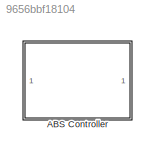
MODEL slx_9656bbf18104
KIND model
CONFIG AbsTol = auto
CONFIG FixedStep = 0.001
CONFIG MaxStep = auto
CONFIG MinStep = auto
CONFIG PostLoadFcn = , if any(exist('dsrtsu_mdlpostloadfcn', 'file') == [2, 3, 6]), try dsrtsu_mdlpostloadfcn('Execute', bdroot); catch fprintf('Error in PostLoadFcn (dsrtsu_mdlpostloadfcn) for model "%s":\n %s\n', bdroot, lasterr); end, end, \n
CONFIG RelTol = 1e-3
CONFIG SampleTimeConstraint = Unconstrained
CONFIG Solver = ode45
CONFIG SolverMode = Auto
CONFIG SolverName = ode45
CONFIG StartTime = 0.0
CONFIG StopTime = 30
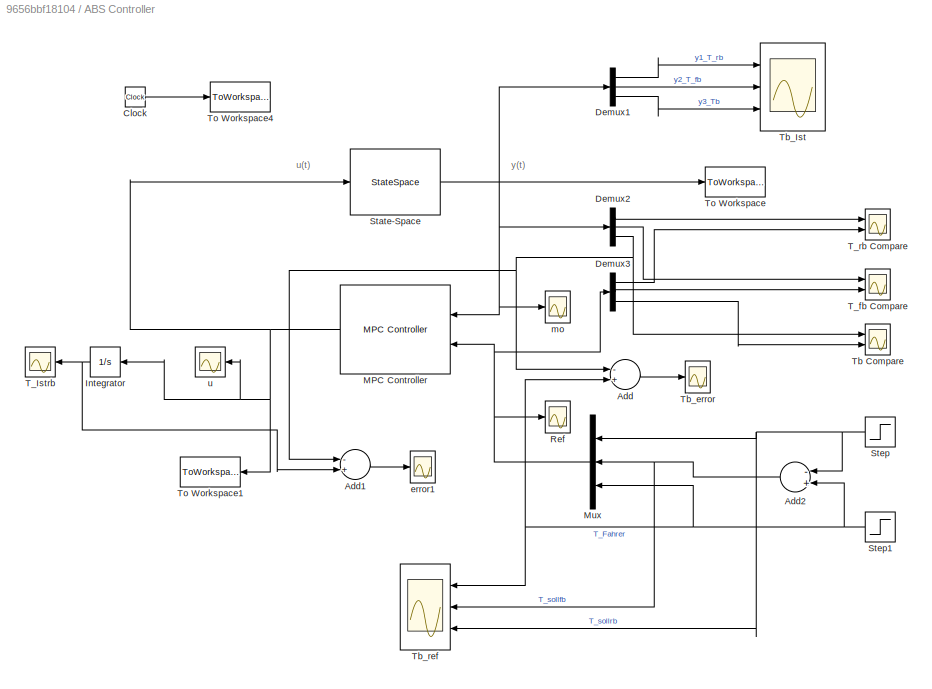
BLOCK [SubSystem] ABS Controller
  Ports = []
  RequestExecContextInheritance = off
  Variant = off
BLOCK [Sum] ABS Controller/Add
  InputSameDT = off
  Inputs = -+
  OutDataTypeStr = Inherit: Inherit via internal rule
  Ports = [2, 1]
  SaturateOnIntegerOverflow = off
BLOCK [Sum] ABS Controller/Add1
  InputSameDT = off
  Inputs = -+
  OutDataTypeStr = Inherit: Inherit via internal rule
  Ports = [2, 1]
  SaturateOnIntegerOverflow = off
BLOCK [Sum] ABS Controller/Add2
  InputSameDT = off
  Inputs = -+
  OutDataTypeStr = Inherit: Inherit via internal rule
  Ports = [2, 1]
  SaturateOnIntegerOverflow = off
BLOCK [Clock] ABS Controller/Clock
BLOCK [Demux] ABS Controller/Demux1
  DisplayOption = bar
  Outputs = 3
  Ports = [1, 3]
BLOCK [Demux] ABS Controller/Demux2
  DisplayOption = bar
  Outputs = 3
  Ports = [1, 3]
BLOCK [Demux] ABS Controller/Demux3
  DisplayOption = bar
  Outputs = 3
  Ports = [1, 3]
BLOCK [Integrator] ABS Controller/Integrator
  Ports = [1, 1]
BLOCK [Reference] ABS Controller/MPC Controller  REF=mpclib/MPC Controller  (lib defined in mdl_ae329e0e0455)
  Ports = [2, 1]
  SourceBlock = mpclib/MPC Controller
  SourceType = MPC
BLOCK [Mux] ABS Controller/Mux
  DisplayOption = bar
  Inputs = 3
  Ports = [3, 1]
BLOCK [Scope] ABS Controller/Ref
  Ports = [1]
  ScopeSpecificationString = Simulink.scopes.TimeScopeBlockCfg('CurrentConfiguration', extmgr.ConfigurationSet(extmgr.Configuration('Core','General UI',true),extmgr.Configuration('Core','Source UI',true),extmgr.Configuration('Sources','WiredSimulink',true,'DataLoggingSaveFormat','Structure','DataLoggingLimitDataPoints',true,'DataLoggingDecimation','1','DataLoggingDecimateData',true,'DataLoggingVariableName','ScopeData5'),extm...<+1811ch>
BLOCK [StateSpace] ABS Controller/State-Space
  A = A
  B = B
  C = C
  D = D
  Ports = [1, 1]
  X0 = 0
BLOCK [Step] ABS Controller/Step
  After = T_sollrb
  SampleTime = 0
BLOCK [Step] ABS Controller/Step1
  After = Td
  SampleTime = 0
BLOCK [Scope] ABS Controller/T_Istrb
  Ports = [1]
  ScopeSpecificationString = Simulink.scopes.TimeScopeBlockCfg('CurrentConfiguration', extmgr.ConfigurationSet(extmgr.Configuration('Core','General UI',true),extmgr.Configuration('Core','Source UI',true),extmgr.Configuration('Sources','WiredSimulink',true,'DataLoggingSaveFormat','Structure','DataLoggingLimitDataPoints',true,'DataLoggingDecimation','1','DataLoggingDecimateData',true,'DataLoggingVariableName','ScopeData1'),extm...<+1918ch>
BLOCK [Scope] ABS Controller/T_fb Compare
  NumInputPorts = 2
  Ports = [2]
  ScopeSpecificationString = Simulink.scopes.TimeScopeBlockCfg('CurrentConfiguration', extmgr.ConfigurationSet(extmgr.Configuration('Core','General UI',true),extmgr.Configuration('Core','Source UI',true),extmgr.Configuration('Sources','WiredSimulink',true,'DataLoggingVariableName','ScopeData2'),extmgr.Configuration('Visuals','Time Domain',true,'SerializedDisplays',{struct('MinYLimReal','-175.00000','MaxYLimReal','1575.00000',...<+1477ch>
BLOCK [Scope] ABS Controller/T_rb Compare
  NumInputPorts = 2
  Ports = [2]
  ScopeSpecificationString = Simulink.scopes.TimeScopeBlockCfg('CurrentConfiguration', extmgr.ConfigurationSet(extmgr.Configuration('Core','General UI',true),extmgr.Configuration('Core','Source UI',true),extmgr.Configuration('Sources','WiredSimulink',true,'DataLoggingSaveFormat','Structure','DataLoggingLimitDataPoints',true,'DataLoggingDecimation','1','DataLoggingDecimateData',true,'DataLoggingVariableName','ScopeData1'),extm...<+2312ch>
BLOCK [Scope] ABS Controller/Tb Compare
  NumInputPorts = 2
  Ports = [2]
  ScopeSpecificationString = Simulink.scopes.TimeScopeBlockCfg('CurrentConfiguration', extmgr.ConfigurationSet(extmgr.Configuration('Core','General UI',true),extmgr.Configuration('Core','Source UI',true),extmgr.Configuration('Sources','WiredSimulink',true,'DataLoggingVariableName','ScopeData3'),extmgr.Configuration('Visuals','Time Domain',true,'SerializedDisplays',{struct('MinYLimReal','-10842.86583','MaxYLimReal','-36.42625'...<+1508ch>
BLOCK [Scope] ABS Controller/Tb_Ist
  NumInputPorts = 3
  Ports = [3]
  ScopeSpecificationString = Simulink.scopes.TimeScopeBlockCfg('CurrentConfiguration', extmgr.ConfigurationSet(extmgr.Configuration('Core','General UI',true),extmgr.Configuration('Core','Source UI',true),extmgr.Configuration('Sources','WiredSimulink',true,'DataLoggingSaveFormat','Structure','DataLoggingLimitDataPoints',true,'DataLoggingDecimation','1','DataLoggingDecimateData',true,'DataLoggingVariableName','ScopeData1'),extm...<+1817ch>
BLOCK [Scope] ABS Controller/Tb_error
  Ports = [1]
  ScopeSpecificationString = Simulink.scopes.TimeScopeBlockCfg('CurrentConfiguration', extmgr.ConfigurationSet(extmgr.Configuration('Core','General UI',true),extmgr.Configuration('Core','Source UI',true),extmgr.Configuration('Sources','WiredSimulink',true,'DataLoggingSaveFormat','Structure','DataLoggingLimitDataPoints',true,'DataLoggingDecimation','1','DataLoggingDecimateData',true,'DataLoggingVariableName','ScopeData2'),extm...<+1781ch>
BLOCK [Scope] ABS Controller/Tb_ref
  NumInputPorts = 3
  Ports = [3]
  ScopeSpecificationString = Simulink.scopes.TimeScopeBlockCfg('CurrentConfiguration', extmgr.ConfigurationSet(extmgr.Configuration('Core','General UI',true),extmgr.Configuration('Core','Source UI',true),extmgr.Configuration('Sources','WiredSimulink',true,'DataLoggingSaveFormat','Structure','DataLoggingLimitDataPoints',true,'DataLoggingDecimation','1','DataLoggingDecimateData',true,'DataLoggingVariableName','ScopeData2'),extm...<+1837ch>
BLOCK [ToWorkspace] ABS Controller/To Workspace
  MaxDataPoints = Inf
  Ports = [1]
  SampleTime = -1
  VariableName = y
BLOCK [ToWorkspace] ABS Controller/To Workspace1
  MaxDataPoints = Inf
  Ports = [1]
  SampleTime = -1
  VariableName = u
BLOCK [ToWorkspace] ABS Controller/To Workspace4
  MaxDataPoints = Inf
  Ports = [1]
  SampleTime = -1
  VariableName = t
BLOCK [Scope] ABS Controller/error1
  Ports = [1]
  ScopeSpecificationString = Simulink.scopes.TimeScopeBlockCfg('CurrentConfiguration', extmgr.ConfigurationSet(extmgr.Configuration('Core','General UI',true),extmgr.Configuration('Core','Source UI',true),extmgr.Configuration('Sources','WiredSimulink',true,'DataLoggingSaveFormat','Structure','DataLoggingLimitDataPoints',true,'DataLoggingDecimation','1','DataLoggingDecimateData',true,'DataLoggingVariableName','ScopeData2'),extm...<+1830ch>
BLOCK [Scope] ABS Controller/mo
  Ports = [1]
  ScopeSpecificationString = Simulink.scopes.TimeScopeBlockCfg('CurrentConfiguration', extmgr.ConfigurationSet(extmgr.Configuration('Core','General UI',true),extmgr.Configuration('Core','Source UI',true),extmgr.Configuration('Sources','WiredSimulink',true,'DataLoggingSaveFormat','Structure','DataLoggingLimitDataPoints',true,'DataLoggingDecimation','1','DataLoggingDecimateData',true,'DataLoggingVariableName','ScopeData6'),extm...<+1842ch>
BLOCK [Scope] ABS Controller/u
  Ports = [1]
  ScopeSpecificationString = Simulink.scopes.TimeScopeBlockCfg('CurrentConfiguration', extmgr.ConfigurationSet(extmgr.Configuration('Core','General UI',true),extmgr.Configuration('Core','Source UI',true),extmgr.Configuration('Sources','WiredSimulink',true,'DataLoggingSaveFormat','Structure','DataLoggingLimitDataPoints',true,'DataLoggingDecimation','1','DataLoggingDecimateData',true,'DataLoggingVariableName','ScopeData7'),extm...<+1899ch>
ANNOTATION ABS Controller: u(t)
ANNOTATION ABS Controller: y(t)
LINE ABS Controller/Add1:1 -> ABS Controller/error1:1
NET ABS Controller/Add2:1 -> ABS Controller/Mux:2, ABS Controller/Tb_ref:2
LINE ABS Controller/Add:1 -> ABS Controller/Tb_error:1
LINE ABS Controller/Clock:1 -> ABS Controller/To Workspace4:1
LINE ABS Controller/Demux1:1 -> ABS Controller/Tb_Ist:1
LINE ABS Controller/Demux1:2 -> ABS Controller/Tb_Ist:2
LINE ABS Controller/Demux1:3 -> ABS Controller/Tb_Ist:3
LINE ABS Controller/Demux2:1 -> ABS Controller/T_rb Compare:1
LINE ABS Controller/Demux2:2 -> ABS Controller/T_fb Compare:1
NET ABS Controller/Demux2:3 -> ABS Controller/Add1:1, ABS Controller/Add:1, ABS Controller/Tb Compare:1
LINE ABS Controller/Demux3:1 -> ABS Controller/T_rb Compare:2
LINE ABS Controller/Demux3:2 -> ABS Controller/T_fb Compare:2
LINE ABS Controller/Demux3:3 -> ABS Controller/Tb Compare:2
NET ABS Controller/Integrator:1 -> ABS Controller/Add1:2, ABS Controller/T_Istrb:1
NET ABS Controller/MPC Controller:1 -> ABS Controller/Integrator:1, ABS Controller/State-Space:1, ABS Controller/To Workspace1:1, ABS Controller/u:1
NET ABS Controller/Mux:1 -> ABS Controller/Demux3:1, ABS Controller/MPC Controller:2, ABS Controller/Ref:1
NET ABS Controller/State-Space:1 -> ABS Controller/Demux1:1, ABS Controller/Demux2:1, ABS Controller/MPC Controller:1, ABS Controller/To Workspace:1, ABS Controller/mo:1
NET ABS Controller/Step1:1 -> ABS Controller/Add2:2, ABS Controller/Add:2, ABS Controller/Mux:3, ABS Controller/Tb_ref:1
NET ABS Controller/Step:1 -> ABS Controller/Add2:1, ABS Controller/Mux:1, ABS Controller/Tb_ref:3
note: NET lines group one-source signal fan-out (src -> all destinations, sorted); 1:1 wires keep LINE
